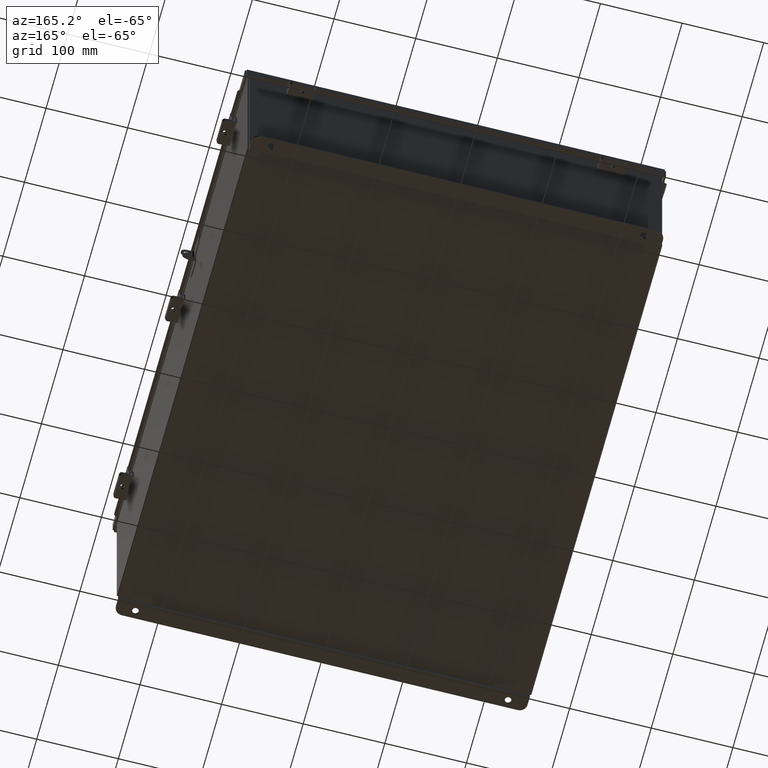
[diagram: clean part render]
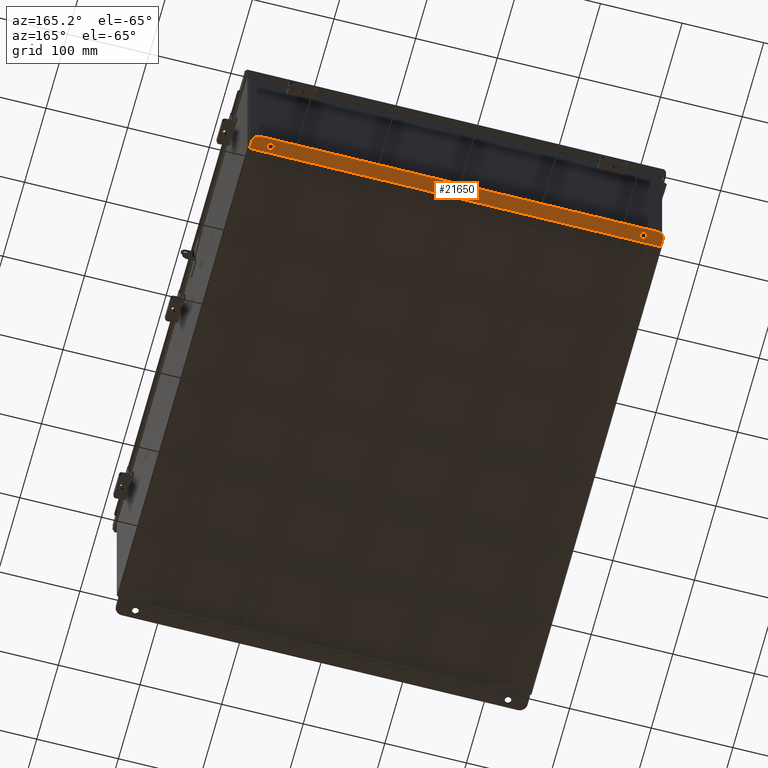
[diagram: same view with one face highlighted and labeled with its STEP entity id]
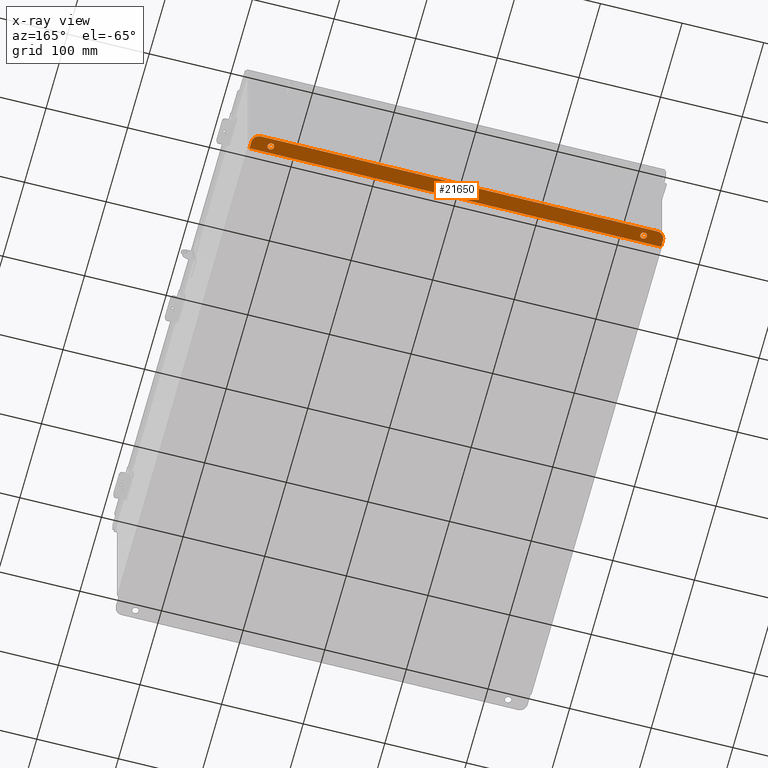
[diagram: x-ray of the same camera — body ghosted, the highlighted face saturated]
A machine part, auxiliary view. The second image highlights one B-rep face of the part: STEP entity #21650.
The next image is the same camera in x-ray: the body ghosted, the highlighted face saturated — about 0% of this face is hidden behind the body in this view.
In plain terms, the highlighted planar face has unit normal (0, 0, 1).
Its self-contained STEP definition (entity closure, byte-faithful):
#300 = CARTESIAN_POINT ( 'NONE',  ( -9.925300000000001800, 0.3628000000000008400, -4.187000000000002100 ) ) ;
#382 = DIRECTION ( 'NONE',  ( 0.0000000000000000000, 1.000000000000000000, -3.702694488566362300E-015 ) ) ;
#385 = VERTEX_POINT ( 'NONE', #7821 ) ;
#526 = AXIS2_PLACEMENT_3D ( 'NONE', #12948, #1501, #14871 ) ;
#545 = EDGE_CURVE ( 'NONE', #1353, #13439, #19476, .T. ) ;
#1098 = CIRCLE ( 'NONE', #526, 0.1560000000000001900 ) ;
#1353 = VERTEX_POINT ( 'NONE', #9223 ) ;
#1501 = DIRECTION ( 'NONE',  ( 0.0000000000000000000, -3.702694488566362300E-015, -1.000000000000000000 ) ) ;
#3041 = ORIENTED_EDGE ( 'NONE', *, *, #545, .F. ) ;
#3257 = ORIENTED_EDGE ( 'NONE', *, *, #8113, .T. ) ;
#3917 = DIRECTION ( 'NONE',  ( 0.0000000000000000000, -1.000000000000000000, 3.702694488566362300E-015 ) ) ;
#3936 = VECTOR ( 'NONE', #23946, 39.37007874015748100 ) ;
#4077 = CARTESIAN_POINT ( 'NONE',  ( 0.0000000000000000000, -1.529834876451987200E-014, -4.187000000000001200 ) ) ;
#4484 = ORIENTED_EDGE ( 'NONE', *, *, #11762, .T. ) ;
#4636 = EDGE_CURVE ( 'NONE', #19758, #8430, #18973, .T. ) ;
#4655 = EDGE_CURVE ( 'NONE', #5988, #24076, #9385, .T. ) ;
#4662 = DIRECTION ( 'NONE',  ( 0.0000000000000000000, -3.702694488566362300E-015, -1.000000000000000000 ) ) ;
#5396 = CIRCLE ( 'NONE', #8146, 0.3750000000000000600 ) ;
#5494 = EDGE_CURVE ( 'NONE', #13439, #1353, #6056, .T. ) ;
#5988 = VERTEX_POINT ( 'NONE', #300 ) ;
#6007 = EDGE_CURVE ( 'NONE', #19758, #5988, #16800, .T. ) ;
#6024 = AXIS2_PLACEMENT_3D ( 'NONE', #12335, #19971, #21546 ) ;
#6056 = CIRCLE ( 'NONE', #14873, 0.1560000000000001900 ) ;
#7008 = EDGE_CURVE ( 'NONE', #385, #17664, #5396, .T. ) ;
#7066 = ORIENTED_EDGE ( 'NONE', *, *, #6007, .T. ) ;
#7263 = EDGE_LOOP ( 'NONE', ( #3257, #8536, #4484, #21326, #7066, #21854 ) ) ;
#7377 = CARTESIAN_POINT ( 'NONE',  ( 9.925299999999998200, 0.3628000000000008400, -4.187000000000002100 ) ) ;
#7804 = EDGE_LOOP ( 'NONE', ( #22498, #11911 ) ) ;
#7821 = CARTESIAN_POINT ( 'NONE',  ( 9.550299999999998200, 0.7377999999999989000, -4.187000000000003800 ) ) ;
#7883 = DIRECTION ( 'NONE',  ( 0.0000000000000000000, -1.000000000000000000, 3.702694488566362300E-015 ) ) ;
#8113 = EDGE_CURVE ( 'NONE', #24076, #385, #19160, .T. ) ;
#8146 = AXIS2_PLACEMENT_3D ( 'NONE', #22507, #11006, #24419 ) ;
#8430 = VERTEX_POINT ( 'NONE', #12614 ) ;
#8536 = ORIENTED_EDGE ( 'NONE', *, *, #7008, .T. ) ;
#8997 = ORIENTED_EDGE ( 'NONE', *, *, #5494, .F. ) ;
#9090 = CARTESIAN_POINT ( 'NONE',  ( -8.987800000000000000, 0.2068000000000006800, -4.187000000000001200 ) ) ;
#9181 = AXIS2_PLACEMENT_3D ( 'NONE', #24807, #19111, #22569 ) ;
#9223 = CARTESIAN_POINT ( 'NONE',  ( 8.987799999999998200, 0.5188000000000010400, -4.187000000000002900 ) ) ;
#9385 = CIRCLE ( 'NONE', #6024, 0.3750000000000000600 ) ;
#9618 = CARTESIAN_POINT ( 'NONE',  ( -9.550300000000001800, 0.7377999999999989000, -4.187000000000003800 ) ) ;
#9966 = CIRCLE ( 'NONE', #17316, 0.1560000000000001900 ) ;
#10728 = DIRECTION ( 'NONE',  ( 0.0000000000000000000, -3.702694488566362300E-015, -1.000000000000000000 ) ) ;
#11006 = DIRECTION ( 'NONE',  ( -0.0000000000000000000, -3.702694488566362300E-015, -1.000000000000000000 ) ) ;
#11654 = DIRECTION ( 'NONE',  ( 0.0000000000000000000, 3.702694488566362300E-015, 1.000000000000000000 ) ) ;
#11762 = EDGE_CURVE ( 'NONE', #17664, #8430, #19626, .T. ) ;
#11846 = CARTESIAN_POINT ( 'NONE',  ( 8.987799999999998200, 0.2068000000000006800, -4.187000000000001200 ) ) ;
#11899 = FACE_OUTER_BOUND ( 'NONE', #7263, .T. ) ;
#11911 = ORIENTED_EDGE ( 'NONE', *, *, #13754, .F. ) ;
#12335 = CARTESIAN_POINT ( 'NONE',  ( -9.550300000000001800, 0.3628000000000008400, -4.187000000000002100 ) ) ;
#12469 = CARTESIAN_POINT ( 'NONE',  ( 0.0000000000000000000, 0.7377999999999989000, -4.187000000000003800 ) ) ;
#12614 = CARTESIAN_POINT ( 'NONE',  ( 9.925299999999998200, 0.01300000000000010700, -4.187000000000001200 ) ) ;
#12948 = CARTESIAN_POINT ( 'NONE',  ( -8.987800000000000000, 0.3628000000000008400, -4.187000000000002100 ) ) ;
#13439 = VERTEX_POINT ( 'NONE', #11846 ) ;
#13445 = CARTESIAN_POINT ( 'NONE',  ( 9.925299999999998200, -1.529834876451987200E-014, -4.187000000000001200 ) ) ;
#13754 = EDGE_CURVE ( 'NONE', #18804, #17972, #9966, .T. ) ;
#13756 = CARTESIAN_POINT ( 'NONE',  ( -9.925300000000001800, -1.529834876451987200E-014, -4.187000000000001200 ) ) ;
#14545 = VECTOR ( 'NONE', #3917, 39.37007874015748100 ) ;
#14871 = DIRECTION ( 'NONE',  ( 0.0000000000000000000, 1.000000000000000000, -3.502369222646487000E-015 ) ) ;
#14873 = AXIS2_PLACEMENT_3D ( 'NONE', #16108, #4662, #18041 ) ;
#15988 = CARTESIAN_POINT ( 'NONE',  ( -8.987800000000000000, 0.5188000000000010400, -4.187000000000002900 ) ) ;
#16108 = CARTESIAN_POINT ( 'NONE',  ( 8.987799999999998200, 0.3628000000000008400, -4.187000000000002100 ) ) ;
#16800 = LINE ( 'NONE', #13756, #21324 ) ;
#17182 = EDGE_LOOP ( 'NONE', ( #3041, #8997 ) ) ;
#17316 = AXIS2_PLACEMENT_3D ( 'NONE', #22220, #10728, #24146 ) ;
#17664 = VERTEX_POINT ( 'NONE', #7377 ) ;
#17972 = VERTEX_POINT ( 'NONE', #15988 ) ;
#18041 = DIRECTION ( 'NONE',  ( 0.0000000000000000000, 1.000000000000000000, -3.502369222646487000E-015 ) ) ;
#18804 = VERTEX_POINT ( 'NONE', #9090 ) ;
#18973 = LINE ( 'NONE', #19872, #24694 ) ;
#19111 = DIRECTION ( 'NONE',  ( 0.0000000000000000000, -3.702694488566362300E-015, -1.000000000000000000 ) ) ;
#19160 = LINE ( 'NONE', #12469, #3936 ) ;
#19348 = PLANE ( 'NONE',  #20850 ) ;
#19476 = CIRCLE ( 'NONE', #9181, 0.1560000000000001900 ) ;
#19626 = LINE ( 'NONE', #13445, #14545 ) ;
#19758 = VERTEX_POINT ( 'NONE', #23543 ) ;
#19872 = CARTESIAN_POINT ( 'NONE',  ( 9.925299999999998200, 0.01300000000000010700, -4.187000000000001200 ) ) ;
#19971 = DIRECTION ( 'NONE',  ( -0.0000000000000000000, -3.702694488566362300E-015, -1.000000000000000000 ) ) ;
#20561 = DIRECTION ( 'NONE',  ( 1.000000000000000000, 2.752408485047568600E-017, -1.019132772786892100E-031 ) ) ;
#20850 = AXIS2_PLACEMENT_3D ( 'NONE', #4077, #11654, #7883 ) ;
#21324 = VECTOR ( 'NONE', #382, 39.37007874015748100 ) ;
#21326 = ORIENTED_EDGE ( 'NONE', *, *, #4636, .F. ) ;
#21485 = FACE_BOUND ( 'NONE', #17182, .T. ) ;
#21546 = DIRECTION ( 'NONE',  ( 0.0000000000000000000, -1.000000000000000000, 4.370956789862820400E-015 ) ) ;
#21650 = ADVANCED_FACE ( 'NONE', ( #22085, #21485, #11899 ), #19348, .F. ) ;
#21854 = ORIENTED_EDGE ( 'NONE', *, *, #4655, .T. ) ;
#22085 = FACE_BOUND ( 'NONE', #7804, .T. ) ;
#22220 = CARTESIAN_POINT ( 'NONE',  ( -8.987800000000000000, 0.3628000000000008400, -4.187000000000002100 ) ) ;
#22498 = ORIENTED_EDGE ( 'NONE', *, *, #22662, .F. ) ;
#22507 = CARTESIAN_POINT ( 'NONE',  ( 9.550299999999998200, 0.3628000000000008400, -4.187000000000002100 ) ) ;
#22569 = DIRECTION ( 'NONE',  ( 0.0000000000000000000, 1.000000000000000000, -3.502369222646487000E-015 ) ) ;
#22662 = EDGE_CURVE ( 'NONE', #17972, #18804, #1098, .T. ) ;
#23543 = CARTESIAN_POINT ( 'NONE',  ( -9.925300000000000000, 0.01300000000000010700, -4.187000000000001200 ) ) ;
#23946 = DIRECTION ( 'NONE',  ( 1.000000000000000000, 0.0000000000000000000, -0.0000000000000000000 ) ) ;
#24076 = VERTEX_POINT ( 'NONE', #9618 ) ;
#24146 = DIRECTION ( 'NONE',  ( 0.0000000000000000000, 1.000000000000000000, -3.502369222646487000E-015 ) ) ;
#24419 = DIRECTION ( 'NONE',  ( 0.0000000000000000000, -1.000000000000000000, 4.370956789862820400E-015 ) ) ;
#24694 = VECTOR ( 'NONE', #20561, 39.37007874015748100 ) ;
#24807 = CARTESIAN_POINT ( 'NONE',  ( 8.987799999999998200, 0.3628000000000008400, -4.187000000000002100 ) ) ;